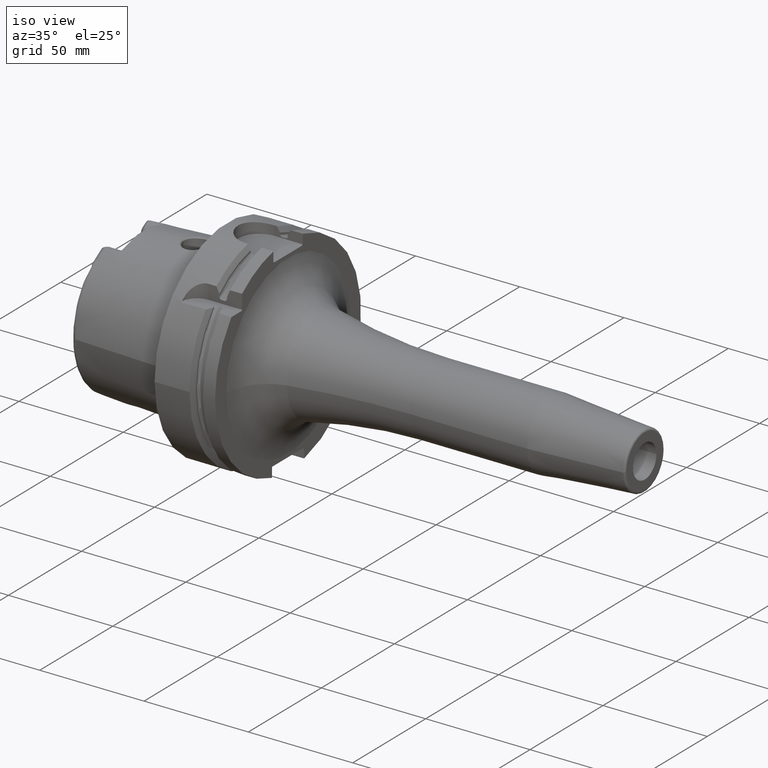
[diagram: clean part render]
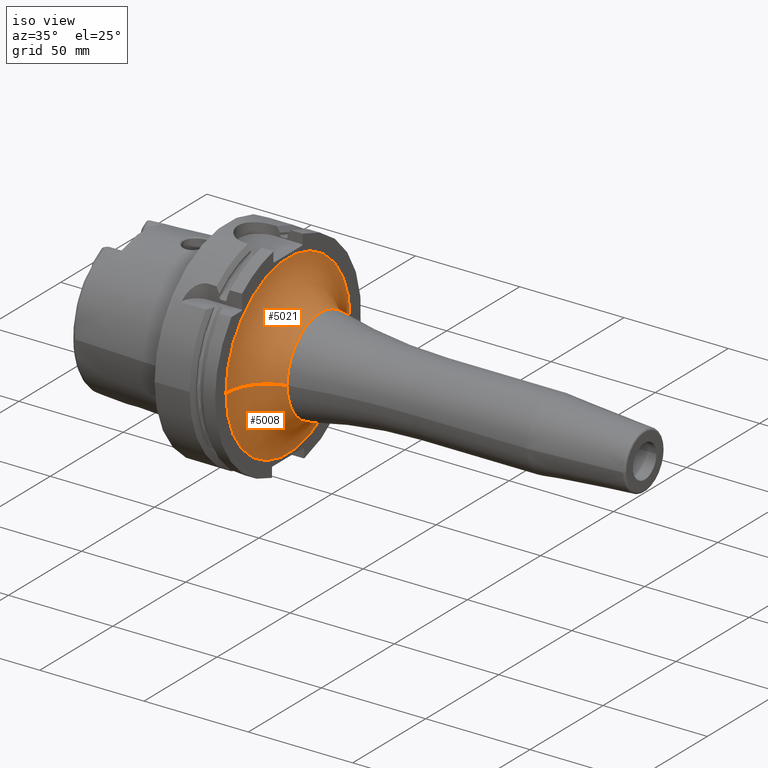
[diagram: same view with one multi-face feature highlighted, each face labeled with its STEP entity id]
A machine part, iso view. The highlighted faces form ONE feature: a constant-radius fillet chain: 2 tangent blend faces with common blend radius 20 mm. The faces share edges in the B-rep.
Their STEP definitions:
[1] entity #5008 (Torus):
#1091=CARTESIAN_POINT('',(2.9E1,0.E0,0.E0));
#1092=DIRECTION('',(1.E0,0.E0,0.E0));
#1093=DIRECTION('',(0.E0,-1.E0,0.E0));
#1094=AXIS2_PLACEMENT_3D('',#1091,#1092,#1093);
#1810=CARTESIAN_POINT('',(4.9E1,-4.250055679356E1,7.074618668668E-13));
#1811=DIRECTION('',(0.E0,-1.664640647547E-14,-1.E0));
#1812=DIRECTION('',(-1.E0,0.E0,0.E0));
#1813=AXIS2_PLACEMENT_3D('',#1810,#1811,#1812);
#1815=CARTESIAN_POINT('',(4.9E1,4.250055679356E1,-7.128742041118E-13));
#1816=DIRECTION('',(0.E0,1.677390865096E-14,1.E0));
#1817=DIRECTION('',(-1.E0,0.E0,0.E0));
#1818=AXIS2_PLACEMENT_3D('',#1815,#1816,#1817);
#1825=CARTESIAN_POINT('',(4.465217391304E1,0.E0,0.E0));
#1826=DIRECTION('',(1.E0,0.E0,0.E0));
#1827=DIRECTION('',(0.E0,-1.E0,0.E0));
#1828=AXIS2_PLACEMENT_3D('',#1825,#1826,#1827);
#3165=CARTESIAN_POINT('',(2.9E1,-4.250055679356E1,-2.095393447991E-13));
#3166=CARTESIAN_POINT('',(2.9E1,4.250055679356E1,2.043345277152E-13));
#3167=VERTEX_POINT('',#3165);
#3168=VERTEX_POINT('',#3166);
#3169=CARTESIAN_POINT('',(4.465217391304E1,-2.297886607996E1,0.E0));
#3170=CARTESIAN_POINT('',(4.465217391304E1,2.297886607996E1,0.E0));
#3171=VERTEX_POINT('',#3169);
#3172=VERTEX_POINT('',#3170);
#4994=CARTESIAN_POINT('',(4.9E1,0.E0,0.E0));
#4995=DIRECTION('',(1.E0,0.E0,0.E0));
#4996=DIRECTION('',(0.E0,-9.999922373516E-1,3.940207676551E-3));
#4997=AXIS2_PLACEMENT_3D('',#4994,#4995,#4996);
#4998=TOROIDAL_SURFACE('',#4997,4.250055679356E1,2.E1);
#4999=ORIENTED_EDGE('',*,*,#4274,.F.);
#5001=ORIENTED_EDGE('',*,*,#5000,.T.);
#5003=ORIENTED_EDGE('',*,*,#5002,.T.);
#5005=ORIENTED_EDGE('',*,*,#5004,.F.);
#5006=EDGE_LOOP('',(#4999,#5001,#5003,#5005));
#5007=FACE_OUTER_BOUND('',#5006,.F.);
#5008=ADVANCED_FACE('',(#5007),#4998,.F.);
#1095=CIRCLE('',#1094,4.250055679356E1);
#1814=CIRCLE('',#1813,2.E1);
#1819=CIRCLE('',#1818,2.E1);
#1829=CIRCLE('',#1828,2.297886607996E1);
#4274=EDGE_CURVE('',#3167,#3168,#1095,.T.);
#5000=EDGE_CURVE('',#3167,#3171,#1814,.T.);
#5002=EDGE_CURVE('',#3171,#3172,#1829,.T.);
#5004=EDGE_CURVE('',#3168,#3172,#1819,.T.);
[2] entity #5021 (Torus):
#1096=CARTESIAN_POINT('',(2.9E1,0.E0,0.E0));
#1097=DIRECTION('',(1.E0,0.E0,0.E0));
#1098=DIRECTION('',(0.E0,1.E0,0.E0));
#1099=AXIS2_PLACEMENT_3D('',#1096,#1097,#1098);
#1810=CARTESIAN_POINT('',(4.9E1,-4.250055679356E1,7.074618668668E-13));
#1811=DIRECTION('',(0.E0,-1.664640647547E-14,-1.E0));
#1812=DIRECTION('',(-1.E0,0.E0,0.E0));
#1813=AXIS2_PLACEMENT_3D('',#1810,#1811,#1812);
#1815=CARTESIAN_POINT('',(4.9E1,4.250055679356E1,-7.128742041118E-13));
#1816=DIRECTION('',(0.E0,1.677390865096E-14,1.E0));
#1817=DIRECTION('',(-1.E0,0.E0,0.E0));
#1818=AXIS2_PLACEMENT_3D('',#1815,#1816,#1817);
#1820=CARTESIAN_POINT('',(4.465217391304E1,0.E0,0.E0));
#1821=DIRECTION('',(1.E0,0.E0,0.E0));
#1822=DIRECTION('',(0.E0,1.E0,0.E0));
#1823=AXIS2_PLACEMENT_3D('',#1820,#1821,#1822);
#3165=CARTESIAN_POINT('',(2.9E1,-4.250055679356E1,-2.095393447991E-13));
#3166=CARTESIAN_POINT('',(2.9E1,4.250055679356E1,2.043345277152E-13));
#3167=VERTEX_POINT('',#3165);
#3168=VERTEX_POINT('',#3166);
#3169=CARTESIAN_POINT('',(4.465217391304E1,-2.297886607996E1,0.E0));
#3170=CARTESIAN_POINT('',(4.465217391304E1,2.297886607996E1,0.E0));
#3171=VERTEX_POINT('',#3169);
#3172=VERTEX_POINT('',#3170);
#5009=CARTESIAN_POINT('',(4.9E1,0.E0,0.E0));
#5010=DIRECTION('',(1.E0,0.E0,0.E0));
#5011=DIRECTION('',(0.E0,9.999922373516E-1,-3.940207676551E-3));
#5012=AXIS2_PLACEMENT_3D('',#5009,#5010,#5011);
#5013=TOROIDAL_SURFACE('',#5012,4.250055679356E1,2.E1);
#5014=ORIENTED_EDGE('',*,*,#4276,.F.);
#5015=ORIENTED_EDGE('',*,*,#5004,.T.);
#5017=ORIENTED_EDGE('',*,*,#5016,.T.);
#5018=ORIENTED_EDGE('',*,*,#5000,.F.);
#5019=EDGE_LOOP('',(#5014,#5015,#5017,#5018));
#5020=FACE_OUTER_BOUND('',#5019,.F.);
#5021=ADVANCED_FACE('',(#5020),#5013,.F.);
#1100=CIRCLE('',#1099,4.250055679356E1);
#1814=CIRCLE('',#1813,2.E1);
#1819=CIRCLE('',#1818,2.E1);
#1824=CIRCLE('',#1823,2.297886607996E1);
#4276=EDGE_CURVE('',#3168,#3167,#1100,.T.);
#5000=EDGE_CURVE('',#3167,#3171,#1814,.T.);
#5004=EDGE_CURVE('',#3168,#3172,#1819,.T.);
#5016=EDGE_CURVE('',#3172,#3171,#1824,.T.);